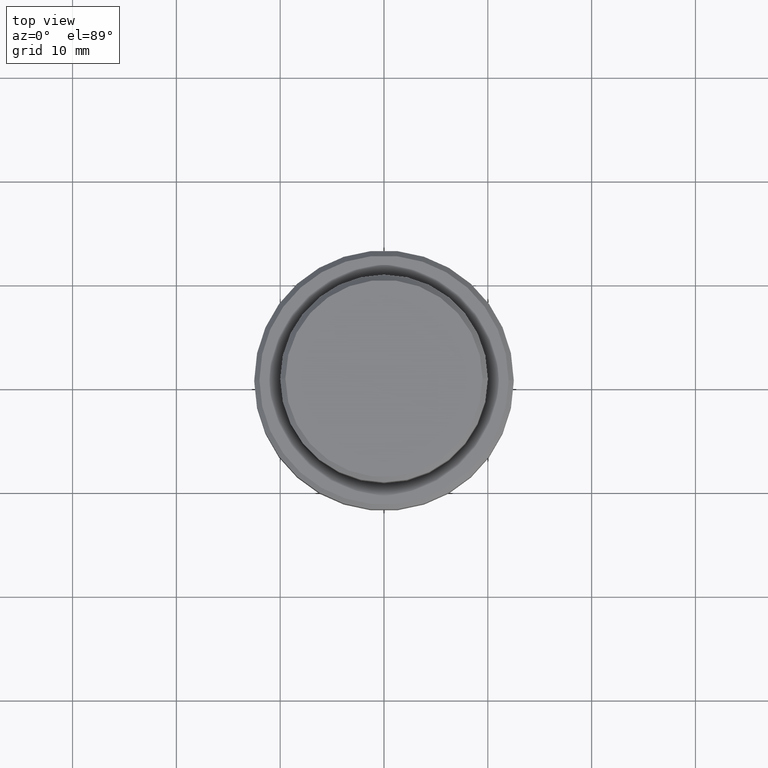
[diagram: clean part render]
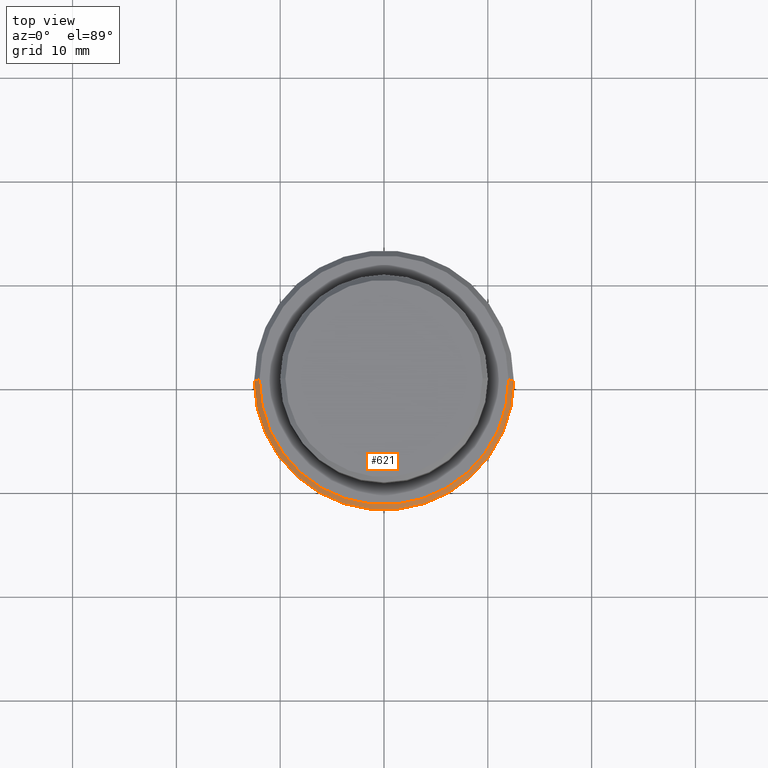
[diagram: same view with one face highlighted and labeled with its STEP entity id]
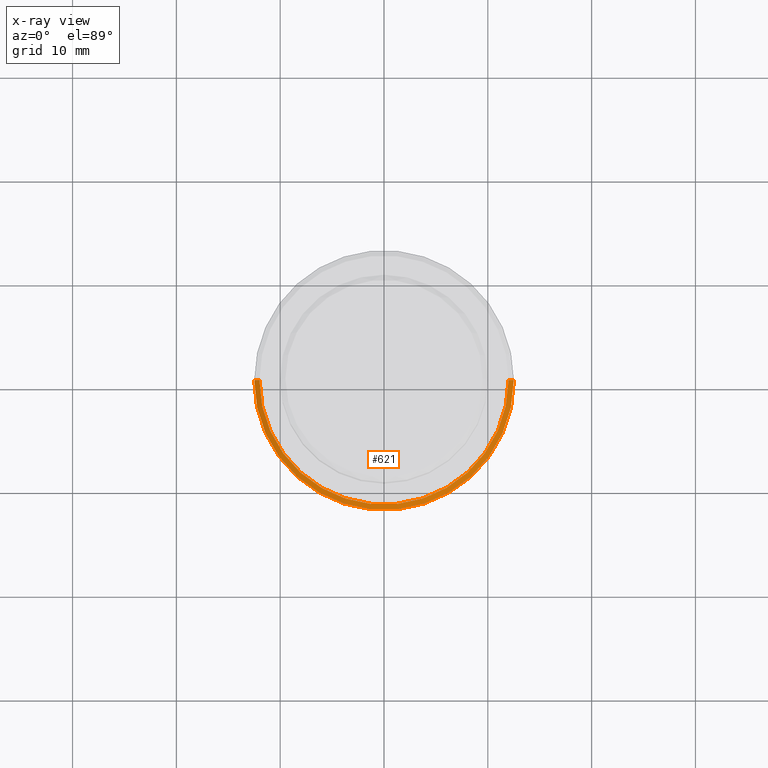
[diagram: x-ray of the same camera — body ghosted, the highlighted face saturated]
A machine part, top view. The second image highlights one B-rep face of the part: STEP entity #621.
The next image is the same camera in x-ray: the body ghosted, the highlighted face saturated — about 0% of this face is hidden behind the body in this view.
In plain terms, the highlighted conical surface has half-angle 45 deg.
Its self-contained STEP definition (entity closure, byte-faithful):
#24 = CARTESIAN_POINT ( 'NONE',  ( 0.000000000000000000, 0.000000000000000000, -9.000000000000000000 ) ) ;
#49 = CIRCLE ( 'NONE', #553, 12.00000000000000355 ) ;
#109 = CARTESIAN_POINT ( 'NONE',  ( 0.000000000000000000, 0.000000000000000000, -9.499999999999998224 ) ) ;
#148 = DIRECTION ( 'NONE',  ( 0.7071067811865462405, 8.659560562354918067E-17, -0.7071067811865489050 ) ) ;
#200 = DIRECTION ( 'NONE',  ( 1.000000000000000000, 0.000000000000000000, 0.000000000000000000 ) ) ;
#222 = DIRECTION ( 'NONE',  ( -1.000000000000000000, 0.000000000000000000, 0.000000000000000000 ) ) ;
#224 = CARTESIAN_POINT ( 'NONE',  ( 12.00000000000000355, 1.500192328955507734E-15, -9.000000000000000000 ) ) ;
#292 = VERTEX_POINT ( 'NONE', #224 ) ;
#304 = VECTOR ( 'NONE', #1091, 999.9999999999998863 ) ;
#338 = VERTEX_POINT ( 'NONE', #916 ) ;
#403 = ORIENTED_EDGE ( 'NONE', *, *, #1400, .F. ) ;
#459 = EDGE_LOOP ( 'NONE', ( #403, #1284, #975, #1417 ) ) ;
#491 = EDGE_CURVE ( 'NONE', #338, #1308, #644, .T. ) ;
#553 = AXIS2_PLACEMENT_3D ( 'NONE', #1258, #1307, #1232 ) ;
#568 = AXIS2_PLACEMENT_3D ( 'NONE', #109, #976, #200 ) ;
#574 = FACE_OUTER_BOUND ( 'NONE', #459, .T. ) ;
#617 = CIRCLE ( 'NONE', #568, 12.50000000000000000 ) ;
#621 = ADVANCED_FACE ( 'NONE', ( #574 ), #1280, .T. ) ;
#644 = LINE ( 'NONE', #1410, #304 ) ;
#663 = EDGE_CURVE ( 'NONE', #1368, #1308, #617, .T. ) ;
#676 = DIRECTION ( 'NONE',  ( 0.000000000000000000, 0.000000000000000000, -1.000000000000000000 ) ) ;
#682 = LINE ( 'NONE', #1261, #1022 ) ;
#705 = EDGE_CURVE ( 'NONE', #338, #292, #49, .T. ) ;
#751 = CARTESIAN_POINT ( 'NONE',  ( -12.50000000000000000, 1.530808498934191521E-15, -9.499999999999998224 ) ) ;
#916 = CARTESIAN_POINT ( 'NONE',  ( -12.00000000000000355, 0.000000000000000000, -9.000000000000000000 ) ) ;
#975 = ORIENTED_EDGE ( 'NONE', *, *, #491, .T. ) ;
#976 = DIRECTION ( 'NONE',  ( 0.000000000000000000, 0.000000000000000000, -1.000000000000000000 ) ) ;
#1006 = AXIS2_PLACEMENT_3D ( 'NONE', #24, #676, #222 ) ;
#1022 = VECTOR ( 'NONE', #148, 999.9999999999998863 ) ;
#1091 = DIRECTION ( 'NONE',  ( -0.7071067811865462405, 0.000000000000000000, -0.7071067811865489050 ) ) ;
#1210 = CARTESIAN_POINT ( 'NONE',  ( 12.50000000000000000, 0.000000000000000000, -9.499999999999998224 ) ) ;
#1232 = DIRECTION ( 'NONE',  ( 1.000000000000000000, 0.000000000000000000, 0.000000000000000000 ) ) ;
#1258 = CARTESIAN_POINT ( 'NONE',  ( 0.000000000000000000, 0.000000000000000000, -9.000000000000000000 ) ) ;
#1261 = CARTESIAN_POINT ( 'NONE',  ( 12.00000000000000355, 1.469576158976824342E-15, -9.000000000000000000 ) ) ;
#1280 = CONICAL_SURFACE ( 'NONE', #1006, 12.00000000000000355, 0.7853981633974465026 ) ;
#1284 = ORIENTED_EDGE ( 'NONE', *, *, #705, .F. ) ;
#1307 = DIRECTION ( 'NONE',  ( -0.000000000000000000, -0.000000000000000000, 1.000000000000000000 ) ) ;
#1308 = VERTEX_POINT ( 'NONE', #751 ) ;
#1368 = VERTEX_POINT ( 'NONE', #1210 ) ;
#1400 = EDGE_CURVE ( 'NONE', #292, #1368, #682, .T. ) ;
#1410 = CARTESIAN_POINT ( 'NONE',  ( -12.00000000000000355, 0.000000000000000000, -9.000000000000000000 ) ) ;
#1417 = ORIENTED_EDGE ( 'NONE', *, *, #663, .F. ) ;